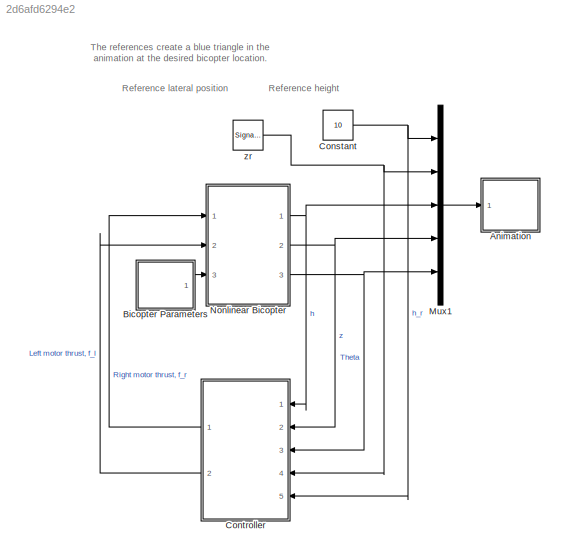
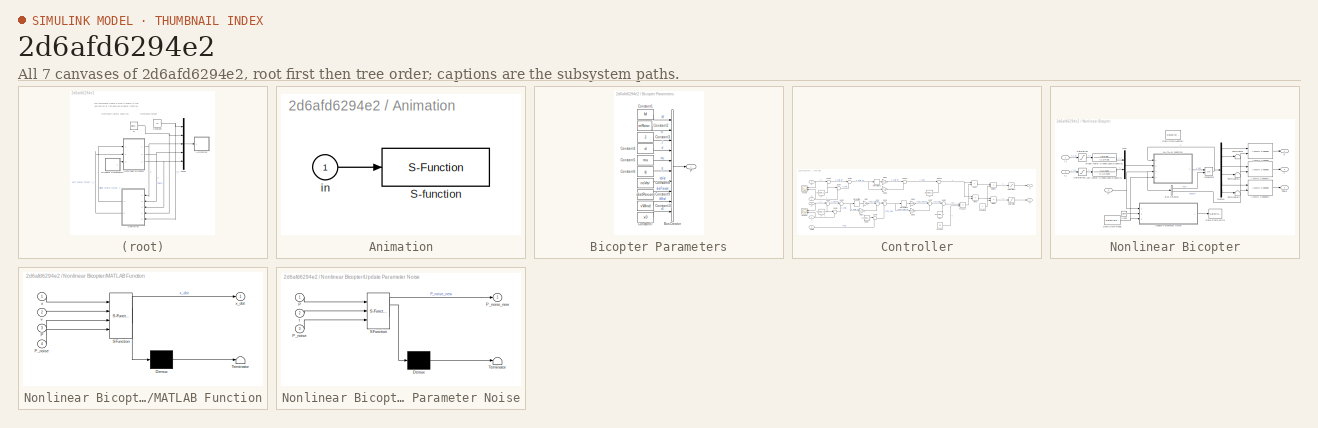
[diagram: thumbnail index - all 7 canvases of the model, root first then tree order]
MODEL slx_2d6afd6294e2
KIND model
CONFIG AbsTol = auto
CONFIG EnableMultiTasking = off
CONFIG FixedStep = 0.001
CONFIG MaxStep = auto
CONFIG MinStep = auto
CONFIG RelTol = 1e-3
CONFIG SampleTimeConstraint = Unconstrained
CONFIG SolverName = ode1
CONFIG StartTime = 0.0
CONFIG StopTime = 100
BLOCK [SubSystem] Animation
  Ports = [1]
  RequestExecContextInheritance = off
BLOCK [S-Function] Animation/S-function
  DeleteFcn = pendan([],[],[],'DeleteBlock');
  EnableBusSupport = off
  FunctionName = planarBicopterAnimation
  Ports = [1]
  SFcnIsStateOwnerBlock = off
  SFunctionDeploymentMode = off
BLOCK [Inport] Animation/in
BLOCK [SubSystem] Bicopter Parameters
  Ports = [0, 1]
  RequestExecContextInheritance = off
BLOCK [BusCreator] Bicopter Parameters/Bus Creator
  DisplayOption = bar
  InheritFromInputs = on
  Inputs = 10
  Ports = [10, 1]
BLOCK [Constant] Bicopter Parameters/Constant1
  Value = M
BLOCK [Constant] Bicopter Parameters/Constant10
  Value = vWind
  VectorParams1D = off
BLOCK [Constant] Bicopter Parameters/Constant2
  Value = mRotor
BLOCK [Constant] Bicopter Parameters/Constant3
  Value = J
BLOCK [Constant] Bicopter Parameters/Constant4
  Value = d
BLOCK [Constant] Bicopter Parameters/Constant5
  Value = mu
BLOCK [Constant] Bicopter Parameters/Constant6
  Value = g
BLOCK [Constant] Bicopter Parameters/Constant7
  Value = x0
  VectorParams1D = off
BLOCK [Constant] Bicopter Parameters/Constant8
  Value = noVar
  VectorParams1D = off
BLOCK [Constant] Bicopter Parameters/Constant9
  Value = distPercent
  VectorParams1D = off
BLOCK [Outport] Bicopter Parameters/P
BLOCK [Constant] Constant
  Value = 10
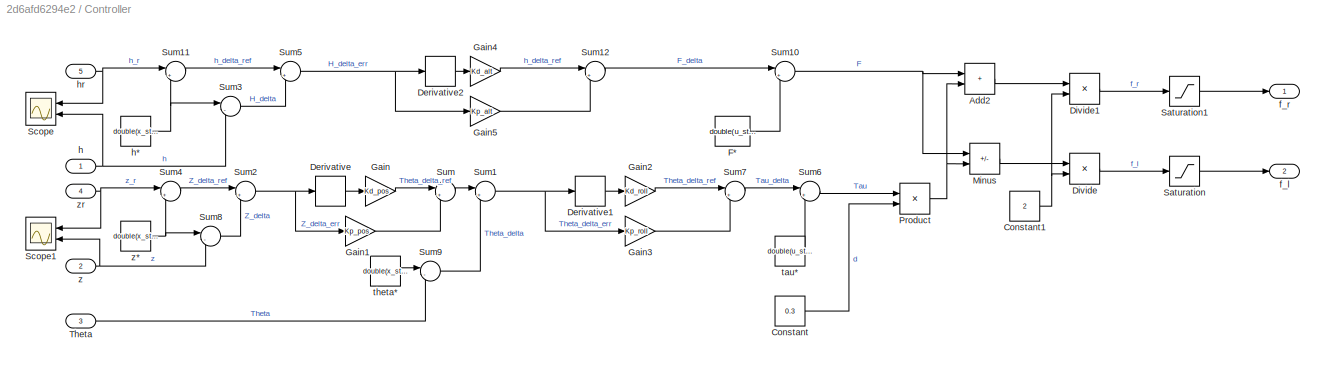
BLOCK [SubSystem] Controller
  NameLocation = top
  Ports = [5, 2]
  RequestExecContextInheritance = off
BLOCK [Sum] Controller/Add2
  IconShape = rectangular
  Ports = [2, 1]
BLOCK [Constant] Controller/Constant
  Value = 0.3
BLOCK [Constant] Controller/Constant1
  Value = 2
BLOCK [Derivative] Controller/Derivative
BLOCK [Derivative] Controller/Derivative1
BLOCK [Derivative] Controller/Derivative2
BLOCK [Product] Controller/Divide
  Inputs = */
  Ports = [2, 1]
BLOCK [Product] Controller/Divide1
  Inputs = */
  Ports = [2, 1]
BLOCK [Constant] Controller/F*
  Value = double(u_star(1))
BLOCK [Gain] Controller/Gain
  Gain = Kd_pos
BLOCK [Gain] Controller/Gain1
  Gain = Kp_pos
BLOCK [Gain] Controller/Gain2
  Gain = Kd_roll
BLOCK [Gain] Controller/Gain3
  Gain = Kp_roll
BLOCK [Gain] Controller/Gain4
  Gain = Kd_alt
BLOCK [Gain] Controller/Gain5
  Gain = Kp_alt
BLOCK [Sum] Controller/Minus
  IconShape = rectangular
  Inputs = +-
  Ports = [2, 1]
BLOCK [Product] Controller/Product
  Ports = [2, 1]
BLOCK [Saturate] Controller/Saturation
  LowerLimit = 0
  UpperLimit = 10
BLOCK [Saturate] Controller/Saturation1
  LowerLimit = 0
  UpperLimit = 10
BLOCK [Scope] Controller/Scope
  Floating = off
  NumInputPorts = 2
  Ports = [2]
  ScopeSpecificationString = Simulink.scopes.TimeScopeBlockCfg('CurrentConfiguration', extmgr.ConfigurationSet(extmgr.Configuration('Core','General UI',true),extmgr.Configuration('Core','Source UI',true),extmgr.Configuration('Sources','WiredSimulink',true,'DataLoggingVariableName','Alt','DataLogging',true,'DataLoggingSaveFormat','StructureWithTime'),extmgr.Configuration('Visuals','Time Domain',true,'SerializedDisplays',{struc...<+1426ch>
BLOCK [Scope] Controller/Scope1
  Floating = off
  NumInputPorts = 2
  Ports = [2]
  ScopeSpecificationString = Simulink.scopes.TimeScopeBlockCfg('CurrentConfiguration', extmgr.ConfigurationSet(extmgr.Configuration('Core','General UI',true),extmgr.Configuration('Core','Source UI',true),extmgr.Configuration('Sources','WiredSimulink',true,'DataLoggingVariableName','Pos','DataLogging',true,'DataLoggingSaveFormat','StructureWithTime'),extmgr.Configuration('Visuals','Time Domain',true,'SerializedDisplays',{struc...<+1470ch>
BLOCK [Sum] Controller/Sum
  Inputs = |++
  Ports = [2, 1]
BLOCK [Sum] Controller/Sum1
  Inputs = |+-
  Ports = [2, 1]
BLOCK [Sum] Controller/Sum10
  Inputs = |++
  Ports = [2, 1]
BLOCK [Sum] Controller/Sum11
  Inputs = |+-
  Ports = [2, 1]
BLOCK [Sum] Controller/Sum12
  Inputs = |++
  Ports = [2, 1]
BLOCK [Sum] Controller/Sum2
  Inputs = |+-
  Ports = [2, 1]
BLOCK [Sum] Controller/Sum3
  Inputs = |-+
  Ports = [2, 1]
BLOCK [Sum] Controller/Sum4
  Inputs = |+-
  Ports = [2, 1]
BLOCK [Sum] Controller/Sum5
  Inputs = |+-
  Ports = [2, 1]
BLOCK [Sum] Controller/Sum6
  Inputs = |++
  Ports = [2, 1]
BLOCK [Sum] Controller/Sum7
  Inputs = |++
  Ports = [2, 1]
BLOCK [Sum] Controller/Sum8
  Inputs = |-+
  Ports = [2, 1]
BLOCK [Sum] Controller/Sum9
  Inputs = |-+
  Ports = [2, 1]
BLOCK [Inport] Controller/Theta
  Port = 3
BLOCK [Outport] Controller/f_l
  Port = 2
BLOCK [Outport] Controller/f_r
BLOCK [Inport] Controller/h
BLOCK [Constant] Controller/h*
  Value = double(x_star(1))
BLOCK [Inport] Controller/hr
  Port = 5
BLOCK [Constant] Controller/tau*
  Value = double(u_star(2))
BLOCK [Constant] Controller/theta*
  Value = double(x_star(5))
BLOCK [Inport] Controller/z
  Port = 2
BLOCK [Constant] Controller/z*
  Value = double(x_star(3))
BLOCK [Inport] Controller/zr
  Port = 4
BLOCK [Mux] Mux1
  DisplayOption = bar
  Inputs = 5
  Ports = [5, 1]
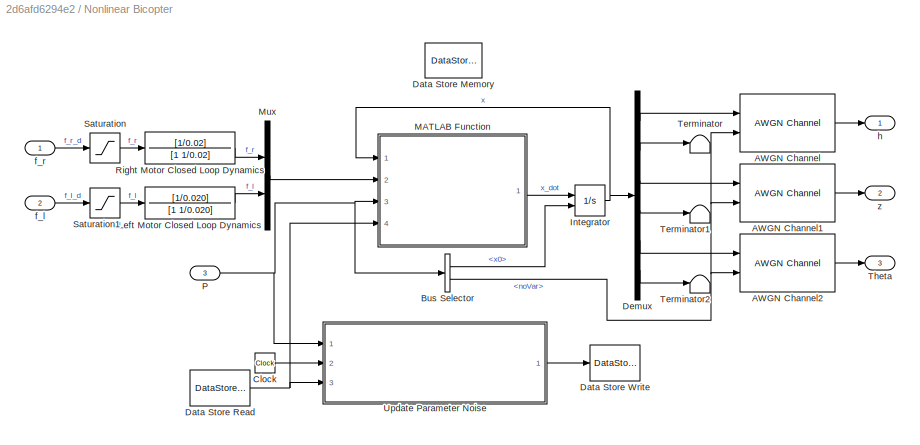
BLOCK [SubSystem] Nonlinear Bicopter
  Permissions = ReadOnly
  Ports = [3, 3]
  RequestExecContextInheritance = off
BLOCK [Reference] Nonlinear Bicopter/AWGN Channel  REF=commchan3/AWGN
Channel
  Ports = [2, 1]
  SourceBlock = commchan3/AWGN\nChannel
  SourceProductBaseCode = CM
  SourceType = AWGN Channel
  UserDataPersistent = on
BLOCK [Reference] Nonlinear Bicopter/AWGN Channel1  REF=commchan3/AWGN
Channel
  Ports = [2, 1]
  SourceBlock = commchan3/AWGN\nChannel
  SourceProductBaseCode = CM
  SourceType = AWGN Channel
  UserDataPersistent = on
BLOCK [Reference] Nonlinear Bicopter/AWGN Channel2  REF=commchan3/AWGN
Channel
  Ports = [2, 1]
  SourceBlock = commchan3/AWGN\nChannel
  SourceProductBaseCode = CM
  SourceType = AWGN Channel
  UserDataPersistent = on
BLOCK [BusSelector] Nonlinear Bicopter/Bus Selector
  OutputSignals = x0,noVar
  Ports = [1, 2]
BLOCK [Clock] Nonlinear Bicopter/Clock
BLOCK [DataStoreMemory] Nonlinear Bicopter/Data Store Memory
  DataStoreName = P_noise
  InitialValue = [0;0;0;0;0;0;0;0]
  OutDataTypeStr = double
  ReadBeforeWriteMsg = warning
  ShowAdditionalParam = off
  SignalType = real
  WriteAfterReadMsg = warning
  WriteAfterWriteMsg = warning
BLOCK [DataStoreRead] Nonlinear Bicopter/Data Store Read
  DataStoreName = P_noise
  Ports = [0, 1]
BLOCK [DataStoreWrite] Nonlinear Bicopter/Data Store Write
  DataStoreName = P_noise
  Ports = [1]
BLOCK [Demux] Nonlinear Bicopter/Demux
  Outputs = 6
  Ports = [1, 6]
BLOCK [Integrator] Nonlinear Bicopter/Integrator
  InitialConditionSource = external
  Ports = [2, 1]
BLOCK [TransferFcn] Nonlinear Bicopter/Left Motor Closed Loop Dynamics
  Denominator = [1 1/0.020]
  Numerator = [1/0.020]
BLOCK [SubSystem] Nonlinear Bicopter/MATLAB Function
  ErrorFcn = Stateflow.Translate.translate
  PermitHierarchicalResolution = ExplicitOnly
  Ports = [4, 1]
  RequestExecContextInheritance = off
  SFBlockType = MATLAB Function
  TreatAsAtomicUnit = on
BLOCK [Demux] Nonlinear Bicopter/MATLAB Function/ Demux 
  Outputs = 1
  Ports = [1, 1]
BLOCK [S-Function] Nonlinear Bicopter/MATLAB Function/ SFunction 
  EnableBusSupport = on
  FunctionName = sf_sfun
  PortCounts = [4 2]
  Ports = [4, 2]
  SFcnIsStateOwnerBlock = off
  SFunctionDeploymentMode = off
  Tag = Stateflow S-Function 3
BLOCK [Terminator] Nonlinear Bicopter/MATLAB Function/ Terminator 
BLOCK [Inport] Nonlinear Bicopter/MATLAB Function/P
  Port = 3
BLOCK [Inport] Nonlinear Bicopter/MATLAB Function/P_noise
  Port = 4
BLOCK [Inport] Nonlinear Bicopter/MATLAB Function/v
  Port = 2
BLOCK [Inport] Nonlinear Bicopter/MATLAB Function/x
BLOCK [Outport] Nonlinear Bicopter/MATLAB Function/x_dot
BLOCK [Mux] Nonlinear Bicopter/Mux
  DisplayOption = bar
  Inputs = 2
  Ports = [2, 1]
BLOCK [Inport] Nonlinear Bicopter/P
  Port = 3
BLOCK [TransferFcn] Nonlinear Bicopter/Right Motor Closed Loop Dynamics
  Denominator = [1 1/0.02]
  Numerator = [1/0.02]
BLOCK [Saturate] Nonlinear Bicopter/Saturation
  LowerLimit = [0]
  UpperLimit = [10]
  ZeroCross = off
BLOCK [Saturate] Nonlinear Bicopter/Saturation1
  LowerLimit = [0]
  UpperLimit = [10]
  ZeroCross = off
BLOCK [Terminator] Nonlinear Bicopter/Terminator
BLOCK [Terminator] Nonlinear Bicopter/Terminator1
BLOCK [Terminator] Nonlinear Bicopter/Terminator2
BLOCK [Outport] Nonlinear Bicopter/Theta
  Port = 3
BLOCK [SubSystem] Nonlinear Bicopter/Update Parameter Noise
  ErrorFcn = Stateflow.Translate.translate
  PermitHierarchicalResolution = ExplicitOnly
  Ports = [3, 1]
  RequestExecContextInheritance = off
  SFBlockType = MATLAB Function
  TreatAsAtomicUnit = on
BLOCK [Demux] Nonlinear Bicopter/Update Parameter Noise/ Demux 
  Outputs = 1
  Ports = [1, 1]
BLOCK [S-Function] Nonlinear Bicopter/Update Parameter Noise/ SFunction 
  EnableBusSupport = on
  FunctionName = sf_sfun
  PortCounts = [3 2]
  Ports = [3, 2]
  SFcnIsStateOwnerBlock = off
  SFunctionDeploymentMode = off
  Tag = Stateflow S-Function 4
BLOCK [Terminator] Nonlinear Bicopter/Update Parameter Noise/ Terminator 
BLOCK [Inport] Nonlinear Bicopter/Update Parameter Noise/P
BLOCK [Inport] Nonlinear Bicopter/Update Parameter Noise/P_noise
  Port = 3
BLOCK [Outport] Nonlinear Bicopter/Update Parameter Noise/P_noise_new
BLOCK [Inport] Nonlinear Bicopter/Update Parameter Noise/t
  Port = 2
BLOCK [Inport] Nonlinear Bicopter/f_l
  Port = 2
BLOCK [Inport] Nonlinear Bicopter/f_r
BLOCK [Outport] Nonlinear Bicopter/h
BLOCK [Outport] Nonlinear Bicopter/z
  Port = 2
BLOCK [SignalGenerator] zr
  Amplitude = 1.5
  Frequency = 0.05
  Ports = [0, 1]
  WaveForm = square
ANNOTATION (root): The references create a blue triangle in the animation at the desired bicopter location.
ANNOTATION (root): Reference height
ANNOTATION (root): Reference lateral position
LINE Animation/in:1 -> Animation/S-function:1
LINE Bicopter Parameters/Bus Creator:1 -> Bicopter Parameters/P:1
LINE Bicopter Parameters/Constant10:1 -> Bicopter Parameters/Bus Creator:9
LINE Bicopter Parameters/Constant1:1 -> Bicopter Parameters/Bus Creator:1
LINE Bicopter Parameters/Constant2:1 -> Bicopter Parameters/Bus Creator:2
LINE Bicopter Parameters/Constant3:1 -> Bicopter Parameters/Bus Creator:3
LINE Bicopter Parameters/Constant4:1 -> Bicopter Parameters/Bus Creator:4
LINE Bicopter Parameters/Constant5:1 -> Bicopter Parameters/Bus Creator:5
LINE Bicopter Parameters/Constant6:1 -> Bicopter Parameters/Bus Creator:6
LINE Bicopter Parameters/Constant7:1 -> Bicopter Parameters/Bus Creator:10
LINE Bicopter Parameters/Constant8:1 -> Bicopter Parameters/Bus Creator:7
LINE Bicopter Parameters/Constant9:1 -> Bicopter Parameters/Bus Creator:8
LINE Bicopter Parameters:1 -> Nonlinear Bicopter:3
NET Constant:1 -> Controller:5, Mux1:1
LINE Controller/Add2:1 -> Controller/Divide1:1
NET Controller/Constant1:1 -> Controller/Divide1:2, Controller/Divide:2
LINE Controller/Constant:1 -> Controller/Product:2
LINE Controller/Derivative1:1 -> Controller/Gain2:1
LINE Controller/Derivative2:1 -> Controller/Gain4:1
LINE Controller/Derivative:1 -> Controller/Gain:1
LINE Controller/Divide1:1 -> Controller/Saturation1:1
LINE Controller/Divide:1 -> Controller/Saturation:1
LINE Controller/F*:1 -> Controller/Sum10:2
LINE Controller/Gain1:1 -> Controller/Sum:2
LINE Controller/Gain2:1 -> Controller/Sum7:1
LINE Controller/Gain3:1 -> Controller/Sum7:2
LINE Controller/Gain4:1 -> Controller/Sum12:1
LINE Controller/Gain5:1 -> Controller/Sum12:2
LINE Controller/Gain:1 -> Controller/Sum:1
LINE Controller/Minus:1 -> Controller/Divide:1
NET Controller/Product:1 -> Controller/Add2:2, Controller/Minus:2
LINE Controller/Saturation1:1 -> Controller/f_r:1
LINE Controller/Saturation:1 -> Controller/f_l:1
NET Controller/Sum10:1 -> Controller/Add2:1, Controller/Minus:1
LINE Controller/Sum11:1 -> Controller/Sum5:1
LINE Controller/Sum12:1 -> Controller/Sum10:1
NET Controller/Sum1:1 -> Controller/Derivative1:1, Controller/Gain3:1
NET Controller/Sum2:1 -> Controller/Derivative:1, Controller/Gain1:1
LINE Controller/Sum3:1 -> Controller/Sum5:2
LINE Controller/Sum4:1 -> Controller/Sum2:1
NET Controller/Sum5:1 -> Controller/Derivative2:1, Controller/Gain5:1
LINE Controller/Sum6:1 -> Controller/Product:1
LINE Controller/Sum7:1 -> Controller/Sum6:1
LINE Controller/Sum8:1 -> Controller/Sum2:2
LINE Controller/Sum9:1 -> Controller/Sum1:2
LINE Controller/Sum:1 -> Controller/Sum1:1
LINE Controller/Theta:1 -> Controller/Sum9:2
NET Controller/h*:1 -> Controller/Sum11:2, Controller/Sum3:1
NET Controller/h:1 -> Controller/Scope:2, Controller/Sum3:2
NET Controller/hr:1 -> Controller/Scope:1, Controller/Sum11:1
LINE Controller/tau*:1 -> Controller/Sum6:2
LINE Controller/theta*:1 -> Controller/Sum9:1
NET Controller/z*:1 -> Controller/Sum4:2, Controller/Sum8:1
NET Controller/z:1 -> Controller/Scope1:2, Controller/Sum8:2
NET Controller/zr:1 -> Controller/Scope1:1, Controller/Sum4:1
LINE Controller:1 -> Nonlinear Bicopter:1
LINE Controller:2 -> Nonlinear Bicopter:2
LINE Mux1:1 -> Animation:1
LINE Nonlinear Bicopter/AWGN Channel1:1 -> Nonlinear Bicopter/z:1
LINE Nonlinear Bicopter/AWGN Channel2:1 -> Nonlinear Bicopter/Theta:1
LINE Nonlinear Bicopter/AWGN Channel:1 -> Nonlinear Bicopter/h:1
LINE Nonlinear Bicopter/Bus Selector:1 -> Nonlinear Bicopter/Integrator:2
NET Nonlinear Bicopter/Bus Selector:2 -> Nonlinear Bicopter/AWGN Channel1:2, Nonlinear Bicopter/AWGN Channel2:2, Nonlinear Bicopter/AWGN Channel:2
LINE Nonlinear Bicopter/Clock:1 -> Nonlinear Bicopter/Update Parameter Noise:2
NET Nonlinear Bicopter/Data Store Read:1 -> Nonlinear Bicopter/MATLAB Function:4, Nonlinear Bicopter/Update Parameter Noise:3
LINE Nonlinear Bicopter/Demux:1 -> Nonlinear Bicopter/AWGN Channel:1
LINE Nonlinear Bicopter/Demux:2 -> Nonlinear Bicopter/Terminator:1
LINE Nonlinear Bicopter/Demux:3 -> Nonlinear Bicopter/AWGN Channel1:1
LINE Nonlinear Bicopter/Demux:4 -> Nonlinear Bicopter/Terminator1:1
LINE Nonlinear Bicopter/Demux:5 -> Nonlinear Bicopter/AWGN Channel2:1
LINE Nonlinear Bicopter/Demux:6 -> Nonlinear Bicopter/Terminator2:1
NET Nonlinear Bicopter/Integrator:1 -> Nonlinear Bicopter/Demux:1, Nonlinear Bicopter/MATLAB Function:1
LINE Nonlinear Bicopter/Left Motor Closed Loop Dynamics:1 -> Nonlinear Bicopter/Mux:2
LINE Nonlinear Bicopter/MATLAB Function:1 -> Nonlinear Bicopter/Integrator:1
LINE Nonlinear Bicopter/Mux:1 -> Nonlinear Bicopter/MATLAB Function:2
NET Nonlinear Bicopter/P:1 -> Nonlinear Bicopter/Bus Selector:1, Nonlinear Bicopter/MATLAB Function:3, Nonlinear Bicopter/Update Parameter Noise:1
LINE Nonlinear Bicopter/Right Motor Closed Loop Dynamics:1 -> Nonlinear Bicopter/Mux:1
LINE Nonlinear Bicopter/Saturation1:1 -> Nonlinear Bicopter/Left Motor Closed Loop Dynamics:1
LINE Nonlinear Bicopter/Saturation:1 -> Nonlinear Bicopter/Right Motor Closed Loop Dynamics:1
LINE Nonlinear Bicopter/Update Parameter Noise:1 -> Nonlinear Bicopter/Data Store Write:1
LINE Nonlinear Bicopter/f_l:1 -> Nonlinear Bicopter/Saturation1:1
LINE Nonlinear Bicopter/f_r:1 -> Nonlinear Bicopter/Saturation:1
NET Nonlinear Bicopter:1 -> Controller:1, Mux1:3
NET Nonlinear Bicopter:2 -> Controller:2, Mux1:4
NET Nonlinear Bicopter:3 -> Controller:3, Mux1:5
NET zr:1 -> Controller:4, Mux1:2
note: NET lines group one-source signal fan-out (src -> all destinations, sorted); 1:1 wires keep LINE
CHART Nonlinear Bicopter/MATLAB Function states=1 transitions=1
  STATE_LABEL 'eML_blk_kernel()'
  STATE_LABEL 'SCRIPT:\nfunction x_dot = VTOLNonlinearDynamics(x,v,P, P_noise)\n\nM = P(1) + P_noise(1);\nm = P(2) + P_noise(2);\nJ = P(3) + P_noise(3);\nd = P(4) + P_noise(4);\nmu = P(5)+ P_noise(5);\ng = P(6) + P_noise(6);\nc_d = 1;\nv_wind = P(9) + P_noise(7);\ntheta_wind = P_noise(8);\n\nF_drag_wind_vert = c_d*v_wind*sin(theta_wind);\nF_drag_wind_horiz = c_d*v_wind*cos(theta_wind);\n\nthrustToTorque = [1   1;\n              ...<+344ch>'
CHART Nonlinear Bicopter/Update Parameter Noise states=1 transitions=1
  STATE_LABEL 'eML_blk_kernel()'
  STATE_LABEL 'SCRIPT:\nfunction P_noise_new  = updateParameterNoise(P,t,P_noise)\nif t<=0.001\n    M = P(1) ;\n    m = P(2) ;\n    J = P(3) ;\n    d = P(4) ;\n    mu = P(5);\n    g = P(6) ;\n    distPercent = P(8);\n    MNoise = (distPercent*M/100)*rand - distPercent*M/200;\n    mNoise = (distPercent*m/100)*rand - distPercent*m/200;\n    JNoise = (distPercent*J/100)*rand - distPercent*J/200;\n    dNoise = (distPercent*d/100...<+581ch>'
CHART  states=0 transitions=0
CHART  states=0 transitions=0
